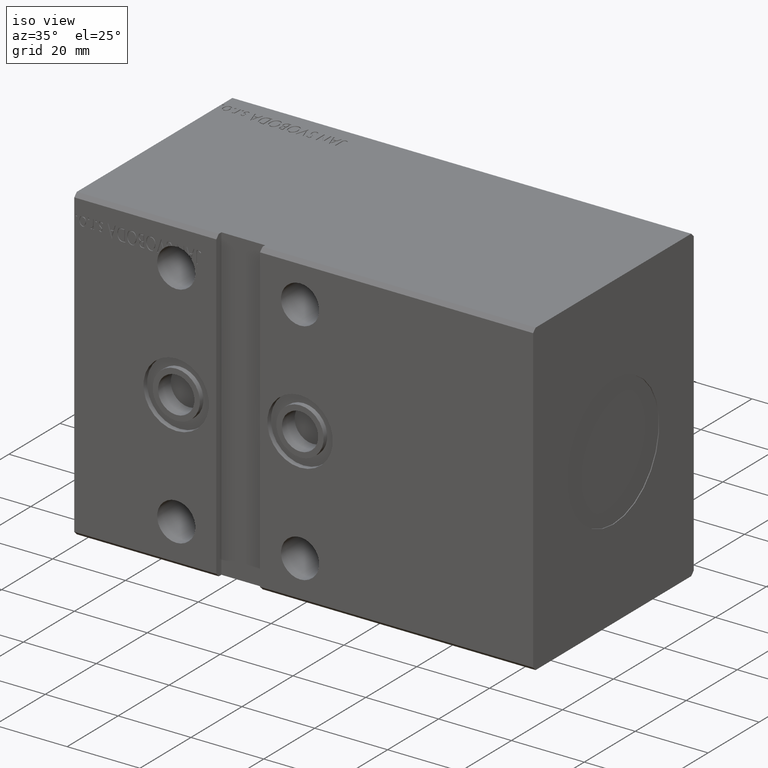
[diagram: clean part render]
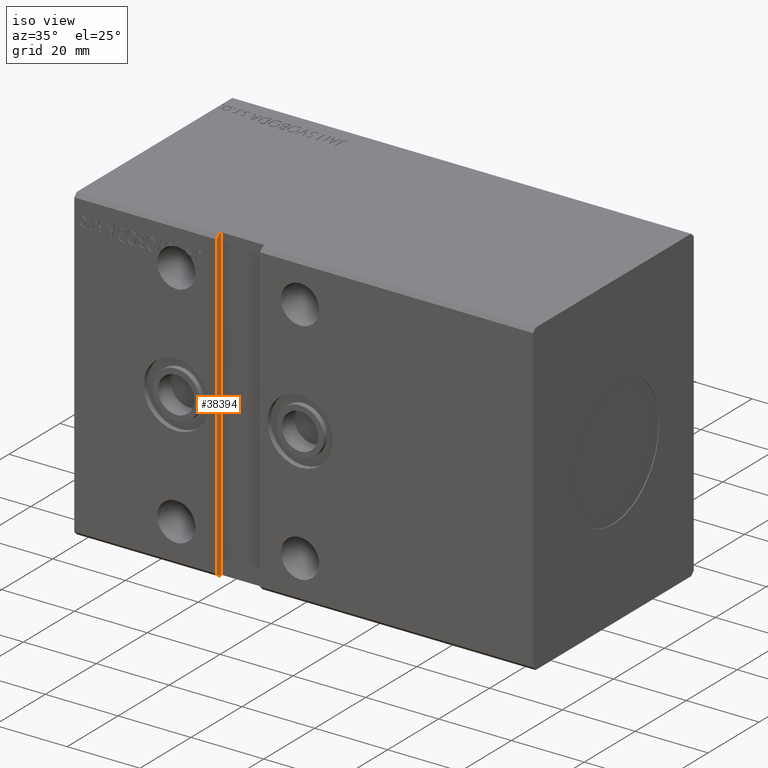
[diagram: same view with one face highlighted and labeled with its STEP entity id]
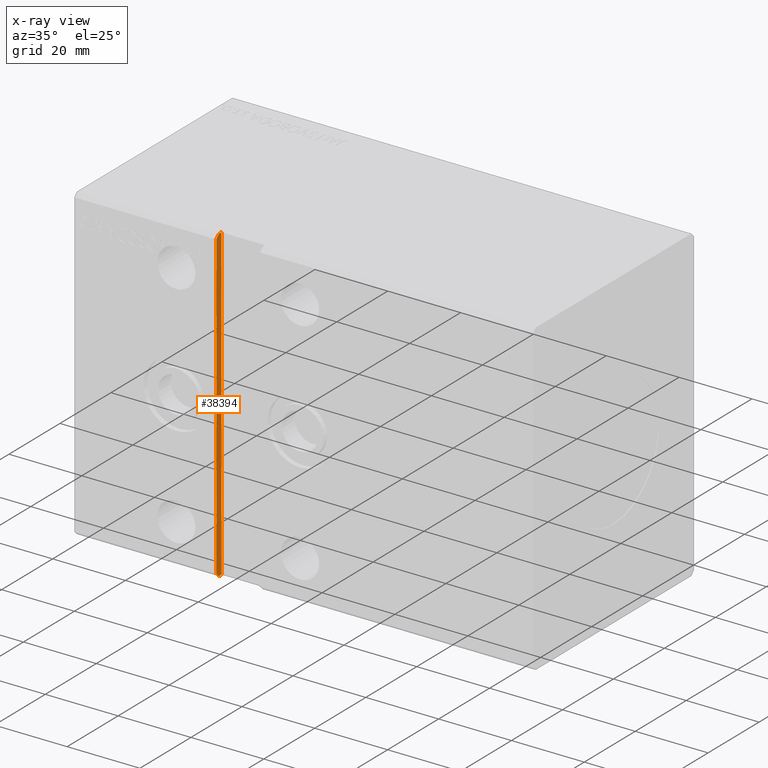
[diagram: x-ray of the same camera — body ghosted, the highlighted face saturated]
A machine part, iso view. The second image highlights one B-rep face of the part: STEP entity #38394.
The next image is the same camera in x-ray: the body ghosted, the highlighted face saturated — about 0% of this face is hidden behind the body in this view.
In plain terms, the highlighted planar face has unit normal (-1, 0, -0).
Its self-contained STEP definition (entity closure, byte-faithful):
#37 = CARTESIAN_POINT ( 'NONE',  ( 39.00000000000002132, -29.50000000000000000, -42.50000000000000711 ) ) ;
#333 = CARTESIAN_POINT ( 'NONE',  ( 39.00000000000002132, -30.50000000000000711, -42.50000000000000711 ) ) ;
#959 = VECTOR ( 'NONE', #6892, 1000.000000000000114 ) ;
#1408 = DIRECTION ( 'NONE',  ( -1.000000000000000000, 1.348690437245963344E-32, -2.449021377849610190E-16 ) ) ;
#2497 = VECTOR ( 'NONE', #8885, 1000.000000000000000 ) ;
#4300 = DIRECTION ( 'NONE',  ( -2.449021377849610190E-16, 0.000000000000000000, 1.000000000000000000 ) ) ;
#6892 = DIRECTION ( 'NONE',  ( -1.731719623548287412E-16, -0.7071067811865451302, 0.7071067811865500152 ) ) ;
#7101 = LINE ( 'NONE', #31745, #959 ) ;
#7735 = ORIENTED_EDGE ( 'NONE', *, *, #27216, .T. ) ;
#7737 = VERTEX_POINT ( 'NONE', #29423 ) ;
#7801 = CARTESIAN_POINT ( 'NONE',  ( 39.00000000000000000, -31.50000000000000000, 42.49999999999999289 ) ) ;
#8185 = CARTESIAN_POINT ( 'NONE',  ( 39.00000000000000000, -29.50000000000000000, 42.49999999999999289 ) ) ;
#8430 = CARTESIAN_POINT ( 'NONE',  ( 39.00000000000000000, -29.50000000000000000, 42.49999999999999289 ) ) ;
#8885 = DIRECTION ( 'NONE',  ( -0.000000000000000000, -1.000000000000000000, -5.507058653894625237E-17 ) ) ;
#9333 = LINE ( 'NONE', #24739, #16241 ) ;
#10263 = VECTOR ( 'NONE', #14146, 1000.000000000000000 ) ;
#12270 = ORIENTED_EDGE ( 'NONE', *, *, #35059, .F. ) ;
#12950 = VECTOR ( 'NONE', #28909, 999.9999999999998863 ) ;
#13488 = CARTESIAN_POINT ( 'NONE',  ( 39.00000000000000711, -30.50000000000001421, 42.49999999999998579 ) ) ;
#13835 = EDGE_CURVE ( 'NONE', #7737, #22695, #36567, .T. ) ;
#13892 = VECTOR ( 'NONE', #20961, 1000.000000000000000 ) ;
#14146 = DIRECTION ( 'NONE',  ( 2.449021377849609697E-16, 0.000000000000000000, -1.000000000000000000 ) ) ;
#15478 = VERTEX_POINT ( 'NONE', #27482 ) ;
#15525 = ORIENTED_EDGE ( 'NONE', *, *, #35392, .F. ) ;
#16241 = VECTOR ( 'NONE', #34198, 1000.000000000000000 ) ;
#18221 = ORIENTED_EDGE ( 'NONE', *, *, #13835, .T. ) ;
#20961 = DIRECTION ( 'NONE',  ( -0.000000000000000000, -1.000000000000000000, -5.507058653894625237E-17 ) ) ;
#21222 = LINE ( 'NONE', #37029, #2497 ) ;
#21695 = EDGE_CURVE ( 'NONE', #40133, #37977, #7101, .T. ) ;
#22695 = VERTEX_POINT ( 'NONE', #35551 ) ;
#23007 = LINE ( 'NONE', #7801, #10263 ) ;
#23597 = PLANE ( 'NONE',  #32688 ) ;
#24062 = ORIENTED_EDGE ( 'NONE', *, *, #39034, .F. ) ;
#24739 = CARTESIAN_POINT ( 'NONE',  ( 39.00000000000000000, -29.50000000000000000, 42.49999999999999289 ) ) ;
#25199 = LINE ( 'NONE', #13488, #12950 ) ;
#26883 = FACE_OUTER_BOUND ( 'NONE', #31212, .T. ) ;
#27216 = EDGE_CURVE ( 'NONE', #15478, #37977, #23007, .T. ) ;
#27320 = VERTEX_POINT ( 'NONE', #37 ) ;
#27482 = CARTESIAN_POINT ( 'NONE',  ( 39.00000000000000000, -31.50000000000000000, 41.49999999999999289 ) ) ;
#28909 = DIRECTION ( 'NONE',  ( -1.731719623548284700E-16, 0.7071067811865462405, 0.7071067811865489050 ) ) ;
#29423 = CARTESIAN_POINT ( 'NONE',  ( 39.00000000000000000, -29.50000000000000000, 42.49999999999999289 ) ) ;
#31212 = EDGE_LOOP ( 'NONE', ( #7735, #37402, #24062, #15525, #18221, #12270 ) ) ;
#31745 = CARTESIAN_POINT ( 'NONE',  ( 39.00000000000002132, -31.49999999999998579, -41.50000000000002132 ) ) ;
#32688 = AXIS2_PLACEMENT_3D ( 'NONE', #8185, #1408, #4300 ) ;
#34147 = CARTESIAN_POINT ( 'NONE',  ( 39.00000000000000711, -31.50000000000000000, -41.50000000000000711 ) ) ;
#34198 = DIRECTION ( 'NONE',  ( 2.449021377849609697E-16, 0.000000000000000000, -1.000000000000000000 ) ) ;
#35059 = EDGE_CURVE ( 'NONE', #15478, #22695, #25199, .T. ) ;
#35392 = EDGE_CURVE ( 'NONE', #7737, #27320, #9333, .T. ) ;
#35551 = CARTESIAN_POINT ( 'NONE',  ( 39.00000000000000000, -30.50000000000000355, 42.49999999999999289 ) ) ;
#36567 = LINE ( 'NONE', #8430, #13892 ) ;
#37029 = CARTESIAN_POINT ( 'NONE',  ( 39.00000000000002132, -29.50000000000000000, -42.50000000000000711 ) ) ;
#37402 = ORIENTED_EDGE ( 'NONE', *, *, #21695, .F. ) ;
#37977 = VERTEX_POINT ( 'NONE', #34147 ) ;
#38394 = ADVANCED_FACE ( 'NONE', ( #26883 ), #23597, .F. ) ;
#39034 = EDGE_CURVE ( 'NONE', #27320, #40133, #21222, .T. ) ;
#40133 = VERTEX_POINT ( 'NONE', #333 ) ;